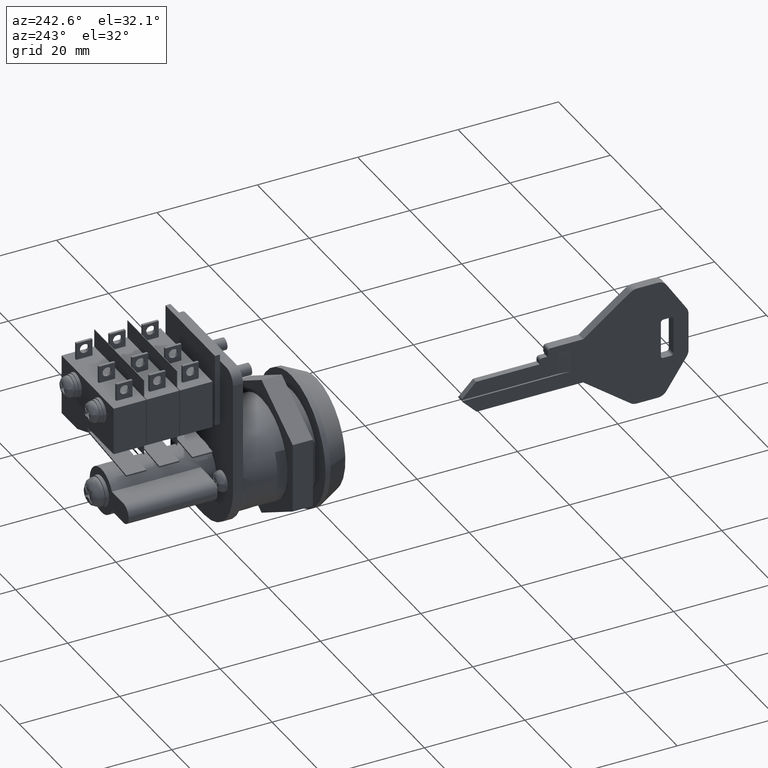
[diagram: clean part render]
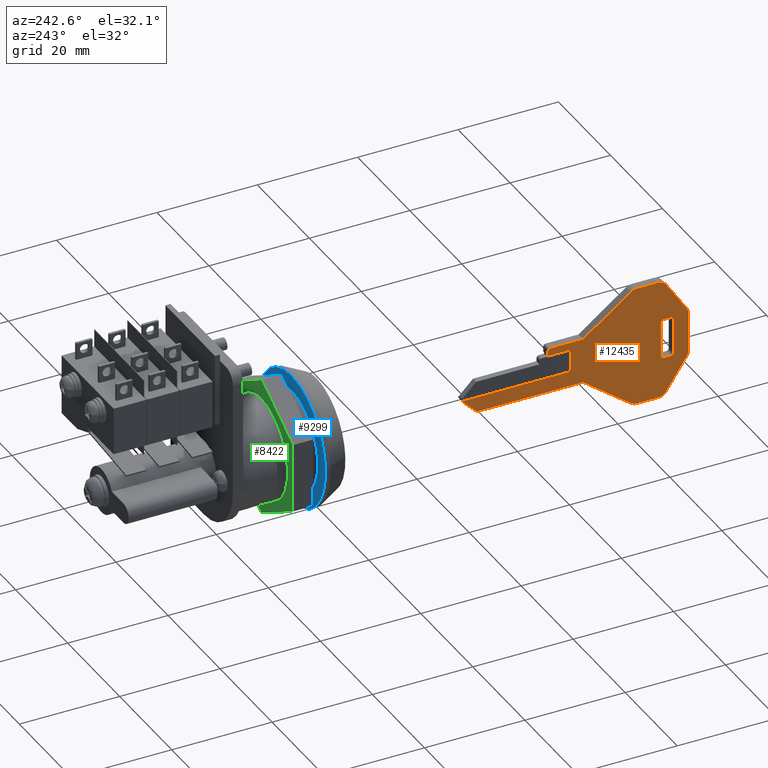
[diagram: same view with three faces highlighted in distinct colors, each labeled with its STEP entity id]
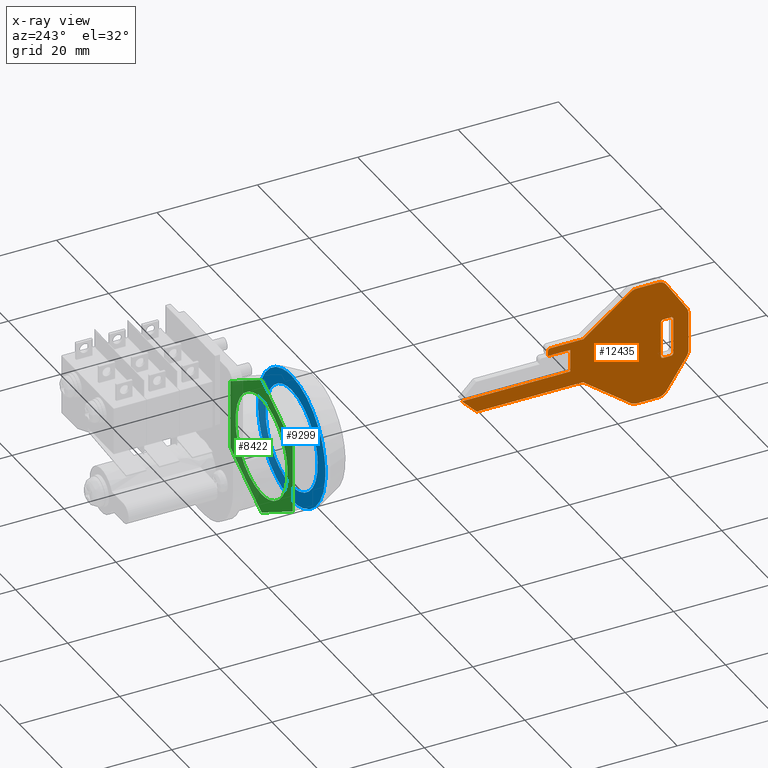
[diagram: x-ray of the same camera — body ghosted, the three highlighted faces saturated]
A machine part, auxiliary view with three faces highlighted in distinct colors.
The next image is the same camera in x-ray (body ghosted, the three faces saturated) — at least one of them is partly hidden behind the body in this view.
Their STEP definitions:

[orange] entity #12435 — the highlighted face is a freeform B-spline surface patch.
#10928=CARTESIAN_POINT('',(-50.107604999999893,0.900000000000012,-1.500000000000115));
#10929=VERTEX_POINT('',#10928);
#10945=CARTESIAN_POINT('',(-50.107604999999893,0.900000000000012,3.0));
#10946=VERTEX_POINT('',#10945);
#10947=CARTESIAN_POINT('',(-50.107604999999893,0.900000000000012,-1.500000000000115));
#10948=CARTESIAN_POINT('',(-50.107604999999893,0.900000000000012,3.0));
#10949=QUASI_UNIFORM_CURVE('',1,(#10947,#10948),.UNSPECIFIED.,.F.,.U.);
#10950=EDGE_CURVE('',#10929,#10946,#10949,.T.);
#10982=CARTESIAN_POINT('',(-70.107602999999898,0.900000000000000,4.0));
#10983=VERTEX_POINT('',#10982);
#10989=CARTESIAN_POINT('',(-68.607603026179802,0.900000000000012,4.0));
#10990=VERTEX_POINT('',#10989);
#10991=CARTESIAN_POINT('',(-70.107602999999898,0.900000000000000,4.0));
#10992=CARTESIAN_POINT('',(-68.607603026179802,0.900000000000012,4.0));
#10993=QUASI_UNIFORM_CURVE('',1,(#10991,#10992),.UNSPECIFIED.,.F.,.U.);
#10994=EDGE_CURVE('',#10983,#10990,#10993,.T.);
#11026=CARTESIAN_POINT('',(-68.107602999999898,0.900000000000012,3.500000000000000));
#11027=VERTEX_POINT('',#11026);
#11028=CARTESIAN_POINT('',(-68.607603026179802,0.900000000000012,3.999999999999999));
#11029=CARTESIAN_POINT('',(-68.400496237325342,0.900000000000012,4.000000010844071));
#11030=CARTESIAN_POINT('',(-68.254049618662620,0.900000000000012,3.853553399849268));
#11031=CARTESIAN_POINT('',(-68.107602999999898,0.900000000000012,3.707106788854465));
#11032=CARTESIAN_POINT('',(-68.107602999999898,0.900000000000012,3.500000000000000));
#11040=(BOUNDED_CURVE()B_SPLINE_CURVE(2,(#11028,#11029,#11030,#11031,#11032),.UNSPECIFIED.,.F.,.U.)B_SPLINE_CURVE_WITH_KNOTS((3,2,3),(0.0,0.500000000000000,1.0),.UNSPECIFIED.)CURVE()GEOMETRIC_REPRESENTATION_ITEM()RATIONAL_B_SPLINE_CURVE((1.0,0.923879527501979,1.0,0.923879527501979,1.0))REPRESENTATION_ITEM(''));
#11041=EDGE_CURVE('',#10990,#11027,#11040,.T.);
#11074=CARTESIAN_POINT('',(-68.107602999999898,0.900000000000012,-3.500000000000000));
#11075=VERTEX_POINT('',#11074);
#11076=CARTESIAN_POINT('',(-68.107602999999898,0.900000000000012,3.500000000000000));
#11077=CARTESIAN_POINT('',(-68.107602999999898,0.900000000000012,-3.500000000000000));
#11078=QUASI_UNIFORM_CURVE('',1,(#11076,#11077),.UNSPECIFIED.,.F.,.U.);
#11079=EDGE_CURVE('',#11027,#11075,#11078,.T.);
#11111=CARTESIAN_POINT('',(-68.607602999999898,0.900000000000012,-4.000000000000116));
#11112=VERTEX_POINT('',#11111);
#11113=CARTESIAN_POINT('',(-68.107602999999898,0.900000000000012,-3.500000000000000));
#11114=CARTESIAN_POINT('',(-68.107602999999898,0.900000000000012,-4.000000000000000));
#11115=CARTESIAN_POINT('',(-68.607602999999898,0.900000000000012,-4.0));
#11123=(BOUNDED_CURVE()B_SPLINE_CURVE(2,(#11113,#11114,#11115),.UNSPECIFIED.,.F.,.U.)CURVE()GEOMETRIC_REPRESENTATION_ITEM()QUASI_UNIFORM_CURVE()RATIONAL_B_SPLINE_CURVE((1.0,0.707106781186548,1.0))REPRESENTATION_ITEM(''));
#11124=EDGE_CURVE('',#11075,#11112,#11123,.T.);
#11155=CARTESIAN_POINT('',(-70.107602991273296,0.900000000000012,-4.0));
#11156=VERTEX_POINT('',#11155);
#11157=CARTESIAN_POINT('',(-68.607602999999898,0.900000000000012,-4.000000000000116));
#11158=CARTESIAN_POINT('',(-70.107602991273296,0.900000000000012,-4.0));
#11159=QUASI_UNIFORM_CURVE('',1,(#11157,#11158),.UNSPECIFIED.,.F.,.U.);
#11160=EDGE_CURVE('',#11112,#11156,#11159,.T.);
#11192=CARTESIAN_POINT('',(-70.607602999999898,0.900000000000012,-3.500000000000000));
#11193=VERTEX_POINT('',#11192);
#11194=CARTESIAN_POINT('',(-70.107602991273296,0.900000000000012,-4.0));
#11195=CARTESIAN_POINT('',(-70.314709775015800,0.900000000000012,-4.000000003614677));
#11196=CARTESIAN_POINT('',(-70.461156387507842,0.900000000000012,-3.853553393678594));
#11197=CARTESIAN_POINT('',(-70.607602999999898,0.900000000000012,-3.707106783742511));
#11198=CARTESIAN_POINT('',(-70.607602999999898,0.900000000000012,-3.500000000000000));
#11206=(BOUNDED_CURVE()B_SPLINE_CURVE(2,(#11194,#11195,#11196,#11197,#11198),.UNSPECIFIED.,.F.,.U.)B_SPLINE_CURVE_WITH_KNOTS((3,2,3),(0.0,0.500000000000000,1.0),.UNSPECIFIED.)CURVE()GEOMETRIC_REPRESENTATION_ITEM()RATIONAL_B_SPLINE_CURVE((1.0,0.923879530841524,1.0,0.923879530841524,1.0))REPRESENTATION_ITEM(''));
#11207=EDGE_CURVE('',#11156,#11193,#11206,.T.);
#11240=CARTESIAN_POINT('',(-70.607602999999898,0.900000000000012,3.500000000000000));
#11241=VERTEX_POINT('',#11240);
#11242=CARTESIAN_POINT('',(-70.607602999999898,0.900000000000012,-3.500000000000000));
#11243=CARTESIAN_POINT('',(-70.607602999999898,0.900000000000012,3.500000000000000));
#11244=QUASI_UNIFORM_CURVE('',1,(#11242,#11243),.UNSPECIFIED.,.F.,.U.);
#11245=EDGE_CURVE('',#11193,#11241,#11244,.T.);
#11277=CARTESIAN_POINT('',(-70.607602999999898,0.900000000000012,3.500000000000000));
#11278=CARTESIAN_POINT('',(-70.607602999999898,0.900000000000012,4.000000000000000));
#11279=CARTESIAN_POINT('',(-70.107602999999898,0.900000000000012,4.0));
#11287=(BOUNDED_CURVE()B_SPLINE_CURVE(2,(#11277,#11278,#11279),.UNSPECIFIED.,.F.,.U.)CURVE()GEOMETRIC_REPRESENTATION_ITEM()QUASI_UNIFORM_CURVE()RATIONAL_B_SPLINE_CURVE((1.0,0.707106781186548,1.0))REPRESENTATION_ITEM(''));
#11288=EDGE_CURVE('',#11241,#10983,#11287,.T.);
#11398=CARTESIAN_POINT('',(-28.607599704258551,0.900000000000012,-1.500000000000115));
#11399=VERTEX_POINT('',#11398);
#11400=CARTESIAN_POINT('',(-28.607599704258551,0.900000000000012,-1.500000000000115));
#11401=CARTESIAN_POINT('',(-50.107604999999893,0.900000000000012,-1.500000000000115));
#11402=QUASI_UNIFORM_CURVE('',1,(#11400,#11401),.UNSPECIFIED.,.F.,.U.);
#11403=EDGE_CURVE('',#11399,#10929,#11402,.T.);
#11422=CARTESIAN_POINT('',(-45.607604999999900,0.900000000000012,3.0));
#11423=VERTEX_POINT('',#11422);
#11424=CARTESIAN_POINT('',(-50.107604999999893,0.900000000000012,3.0));
#11425=CARTESIAN_POINT('',(-45.607604999999900,0.900000000000012,3.0));
#11426=QUASI_UNIFORM_CURVE('',1,(#11424,#11425),.UNSPECIFIED.,.F.,.U.);
#11427=EDGE_CURVE('',#10946,#11423,#11426,.T.);
#11572=CARTESIAN_POINT('',(-63.274269104719700,0.900000000000012,12.0));
#11573=VERTEX_POINT('',#11572);
#11574=CARTESIAN_POINT('',(-67.537236999999905,0.900000000000012,12.0));
#11575=VERTEX_POINT('',#11574);
#11576=CARTESIAN_POINT('',(-63.274269104719700,0.900000000000012,12.0));
#11577=CARTESIAN_POINT('',(-67.537236999999905,0.900000000000012,12.0));
#11578=QUASI_UNIFORM_CURVE('',1,(#11576,#11577),.UNSPECIFIED.,.F.,.U.);
#11579=EDGE_CURVE('',#11573,#11575,#11578,.T.);
#11617=CARTESIAN_POINT('',(-62.074271999999887,0.900000000000012,11.600006000000000));
#11618=VERTEX_POINT('',#11617);
#11619=CARTESIAN_POINT('',(-62.074271999999887,0.900000000000012,11.600006000000000));
#11620=CARTESIAN_POINT('',(-62.607604813202990,0.900000000000012,12.000001234912732));
#11621=CARTESIAN_POINT('',(-63.274269104719700,0.900000000000012,12.0));
#11629=(BOUNDED_CURVE()B_SPLINE_CURVE(2,(#11619,#11620,#11621),.UNSPECIFIED.,.F.,.U.)CURVE()GEOMETRIC_REPRESENTATION_ITEM()QUASI_UNIFORM_CURVE()RATIONAL_B_SPLINE_CURVE((1.0,0.948683764111594,1.0))REPRESENTATION_ITEM(''));
#11630=EDGE_CURVE('',#11618,#11573,#11629,.T.);
#11661=CARTESIAN_POINT('',(-52.607604999999900,0.900000000000012,4.499999999999885));
#11662=VERTEX_POINT('',#11661);
#11663=CARTESIAN_POINT('',(-52.607604999999900,0.900000000000012,4.499999999999885));
#11664=CARTESIAN_POINT('',(-62.074271999999887,0.900000000000012,11.600006000000000));
#11665=QUASI_UNIFORM_CURVE('',1,(#11663,#11664),.UNSPECIFIED.,.F.,.U.);
#11666=EDGE_CURVE('',#11662,#11618,#11665,.T.);
#11689=CARTESIAN_POINT('',(-46.107605026179897,0.900000000000012,4.500000000000000));
#11690=VERTEX_POINT('',#11689);
#11691=CARTESIAN_POINT('',(-46.107605026179897,0.900000000000012,4.500000000000000));
#11692=CARTESIAN_POINT('',(-52.607604999999900,0.900000000000012,4.499999999999885));
#11693=QUASI_UNIFORM_CURVE('',1,(#11691,#11692),.UNSPECIFIED.,.F.,.U.);
#11694=EDGE_CURVE('',#11690,#11662,#11693,.T.);
#11726=CARTESIAN_POINT('',(-45.607604999999900,0.900000000000012,4.0));
#11727=VERTEX_POINT('',#11726);
#11728=CARTESIAN_POINT('',(-45.607604999999900,0.900000000000012,4.0));
#11729=CARTESIAN_POINT('',(-45.607604999999900,0.900000000000012,4.207106788854493));
#11730=CARTESIAN_POINT('',(-45.754051618662650,0.900000000000012,4.353553399849303));
#11731=CARTESIAN_POINT('',(-45.900498237325408,0.900000000000012,4.500000010844113));
#11732=CARTESIAN_POINT('',(-46.107605026179897,0.900000000000012,4.500000000000000));
#11740=(BOUNDED_CURVE()B_SPLINE_CURVE(2,(#11728,#11729,#11730,#11731,#11732),.UNSPECIFIED.,.F.,.U.)B_SPLINE_CURVE_WITH_KNOTS((3,2,3),(0.0,0.500000000000000,1.0),.UNSPECIFIED.)CURVE()GEOMETRIC_REPRESENTATION_ITEM()RATIONAL_B_SPLINE_CURVE((1.0,0.923879527501960,1.0,0.923879527501960,1.0))REPRESENTATION_ITEM(''));
#11741=EDGE_CURVE('',#11727,#11690,#11740,.T.);
#11776=CARTESIAN_POINT('',(-45.607604999999900,0.900000000000012,3.0));
#11777=CARTESIAN_POINT('',(-45.607604999999900,0.900000000000012,4.0));
#11778=QUASI_UNIFORM_CURVE('',1,(#11776,#11777),.UNSPECIFIED.,.F.,.U.);
#11779=EDGE_CURVE('',#11423,#11727,#11778,.T.);
#11811=CARTESIAN_POINT('',(-28.754050999999901,0.900000000000012,-1.853562000000210));
#11812=VERTEX_POINT('',#11811);
#11813=CARTESIAN_POINT('',(-28.754050999999901,0.900000000000012,-1.853562000000210));
#11814=CARTESIAN_POINT('',(-28.607597651970771,0.900000000000012,-1.707114488704743));
#11815=CARTESIAN_POINT('',(-28.607599704258551,0.900000000000012,-1.500000000000115));
#11823=(BOUNDED_CURVE()B_SPLINE_CURVE(2,(#11813,#11814,#11815),.UNSPECIFIED.,.F.,.U.)CURVE()GEOMETRIC_REPRESENTATION_ITEM()QUASI_UNIFORM_CURVE()RATIONAL_B_SPLINE_CURVE((1.0,0.923872941378838,1.0))REPRESENTATION_ITEM(''));
#11824=EDGE_CURVE('',#11812,#11399,#11823,.T.);
#11863=CARTESIAN_POINT('',(-31.400496999999898,0.900000000000012,-4.500000000000000));
#11864=VERTEX_POINT('',#11863);
#11865=CARTESIAN_POINT('',(-31.400496999999898,0.900000000000012,-4.500000000000000));
#11866=CARTESIAN_POINT('',(-28.754050999999901,0.900000000000012,-1.853562000000210));
#11867=QUASI_UNIFORM_CURVE('',1,(#11865,#11866),.UNSPECIFIED.,.F.,.U.);
#11868=EDGE_CURVE('',#11864,#11812,#11867,.T.);
#11891=CARTESIAN_POINT('',(-52.607600999999903,0.900000000000012,-4.500000000000000));
#11892=VERTEX_POINT('',#11891);
#11893=CARTESIAN_POINT('',(-52.607600999999903,0.900000000000012,-4.500000000000000));
#11894=CARTESIAN_POINT('',(-31.400496999999898,0.900000000000012,-4.500000000000000));
#11895=QUASI_UNIFORM_CURVE('',1,(#11893,#11894),.UNSPECIFIED.,.F.,.U.);
#11896=EDGE_CURVE('',#11892,#11864,#11895,.T.);
#11919=CARTESIAN_POINT('',(-62.070993170872597,0.900000000000012,-11.597537880314020));
#11920=VERTEX_POINT('',#11919);
#11921=CARTESIAN_POINT('',(-62.070993170872597,0.900000000000012,-11.597537880314020));
#11922=CARTESIAN_POINT('',(-52.607600999999903,0.900000000000012,-4.500000000000000));
#11923=QUASI_UNIFORM_CURVE('',1,(#11921,#11922),.UNSPECIFIED.,.F.,.U.);
#11924=EDGE_CURVE('',#11920,#11892,#11923,.T.);
#11956=CARTESIAN_POINT('',(-63.274268999999897,0.900000000000012,-12.0));
#11957=VERTEX_POINT('',#11956);
#11958=CARTESIAN_POINT('',(-63.274268999999897,0.900000000000012,-12.0));
#11959=CARTESIAN_POINT('',(-62.605324922600914,0.900000000000012,-12.000000000000005));
#11960=CARTESIAN_POINT('',(-62.070993170872633,0.900000000000012,-11.597537880313981));
#11968=(BOUNDED_CURVE()B_SPLINE_CURVE(2,(#11958,#11959,#11960),.UNSPECIFIED.,.F.,.U.)CURVE()GEOMETRIC_REPRESENTATION_ITEM()QUASI_UNIFORM_CURVE()RATIONAL_B_SPLINE_CURVE((1.0,0.948358829809949,1.0))REPRESENTATION_ITEM(''));
#11969=EDGE_CURVE('',#11957,#11920,#11968,.T.);
#12000=CARTESIAN_POINT('',(-67.537237104719694,0.900000000000012,-12.0));
#12001=VERTEX_POINT('',#12000);
#12002=CARTESIAN_POINT('',(-67.537237104719694,0.900000000000012,-12.0));
#12003=CARTESIAN_POINT('',(-63.274268999999897,0.900000000000012,-12.0));
#12004=QUASI_UNIFORM_CURVE('',1,(#12002,#12003),.UNSPECIFIED.,.F.,.U.);
#12005=EDGE_CURVE('',#12001,#11957,#12004,.T.);
#12037=CARTESIAN_POINT('',(-69.201337999999907,0.900000000000012,-11.109406000000099));
#12038=VERTEX_POINT('',#12037);
#12039=CARTESIAN_POINT('',(-69.201337999999907,0.900000000000012,-11.109406000000099));
#12040=CARTESIAN_POINT('',(-68.607603136463396,0.900000000000012,-12.000000901581313));
#12041=CARTESIAN_POINT('',(-67.537237104719694,0.900000000000012,-12.0));
#12049=(BOUNDED_CURVE()B_SPLINE_CURVE(2,(#12039,#12040,#12041),.UNSPECIFIED.,.F.,.U.)CURVE()GEOMETRIC_REPRESENTATION_ITEM()QUASI_UNIFORM_CURVE()RATIONAL_B_SPLINE_CURVE((1.0,0.881675134599065,1.0))REPRESENTATION_ITEM(''));
#12050=EDGE_CURVE('',#12038,#12001,#12049,.T.);
#12081=CARTESIAN_POINT('',(-73.271703676310693,0.900000000000012,-5.003855260997839));
#12082=VERTEX_POINT('',#12081);
#12083=CARTESIAN_POINT('',(-73.271703676310693,0.900000000000012,-5.003855260997839));
#12084=CARTESIAN_POINT('',(-69.201337999999907,0.900000000000012,-11.109406000000099));
#12085=QUASI_UNIFORM_CURVE('',1,(#12083,#12084),.UNSPECIFIED.,.F.,.U.);
#12086=EDGE_CURVE('',#12082,#12038,#12085,.T.);
#12118=CARTESIAN_POINT('',(-73.607602999999898,0.900000000000012,-3.894455000000110));
#12119=VERTEX_POINT('',#12118);
#12120=CARTESIAN_POINT('',(-73.607602999999898,0.900000000000012,-3.894455000000110));
#12121=CARTESIAN_POINT('',(-73.607602999999898,0.900000000000012,-4.500006189229297));
#12122=CARTESIAN_POINT('',(-73.271703676310722,0.900000000000012,-5.003855260997854));
#12130=(BOUNDED_CURVE()B_SPLINE_CURVE(2,(#12120,#12121,#12122),.UNSPECIFIED.,.F.,.U.)CURVE()GEOMETRIC_REPRESENTATION_ITEM()QUASI_UNIFORM_CURVE()RATIONAL_B_SPLINE_CURVE((1.0,0.957092037934548,1.0))REPRESENTATION_ITEM(''));
#12131=EDGE_CURVE('',#12119,#12082,#12130,.T.);
#12162=CARTESIAN_POINT('',(-73.607602999999898,0.900000000000012,3.894454825467070));
#12163=VERTEX_POINT('',#12162);
#12164=CARTESIAN_POINT('',(-73.607602999999898,0.900000000000012,3.894454825467070));
#12165=CARTESIAN_POINT('',(-73.607602999999898,0.900000000000012,-3.894455000000110));
#12166=QUASI_UNIFORM_CURVE('',1,(#12164,#12165),.UNSPECIFIED.,.F.,.U.);
#12167=EDGE_CURVE('',#12163,#12119,#12166,.T.);
#12199=CARTESIAN_POINT('',(-73.270456448436306,0.900000000000012,5.005723828422310));
#12200=VERTEX_POINT('',#12199);
#12201=CARTESIAN_POINT('',(-73.270456448436320,0.900000000000012,5.005723828422319));
#12202=CARTESIAN_POINT('',(-73.607603052951234,0.900000000000012,4.501232584172988));
#12203=CARTESIAN_POINT('',(-73.607602999999884,0.900000000000012,3.894454825467069));
#12211=(BOUNDED_CURVE()B_SPLINE_CURVE(2,(#12201,#12202,#12203),.UNSPECIFIED.,.F.,.U.)CURVE()GEOMETRIC_REPRESENTATION_ITEM()QUASI_UNIFORM_CURVE()RATIONAL_B_SPLINE_CURVE((1.0,0.956929118516611,1.0))REPRESENTATION_ITEM(''));
#12212=EDGE_CURVE('',#12200,#12163,#12211,.T.);
#12243=CARTESIAN_POINT('',(-69.201337999999907,0.900000000000012,11.109404999999899));
#12244=VERTEX_POINT('',#12243);
#12245=CARTESIAN_POINT('',(-69.201337999999907,0.900000000000012,11.109404999999899));
#12246=CARTESIAN_POINT('',(-73.270456448436306,0.900000000000012,5.005723828422310));
#12247=QUASI_UNIFORM_CURVE('',1,(#12245,#12246),.UNSPECIFIED.,.F.,.U.);
#12248=EDGE_CURVE('',#12244,#12200,#12247,.T.);
#12280=CARTESIAN_POINT('',(-67.537236999999905,0.900000000000012,12.0));
#12281=CARTESIAN_POINT('',(-68.607603403512840,0.900000000000012,12.000000803777835));
#12282=CARTESIAN_POINT('',(-69.201337999999907,0.900000000000012,11.109404999999899));
#12290=(BOUNDED_CURVE()B_SPLINE_CURVE(2,(#12280,#12281,#12282),.UNSPECIFIED.,.F.,.U.)CURVE()GEOMETRIC_REPRESENTATION_ITEM()QUASI_UNIFORM_CURVE()RATIONAL_B_SPLINE_CURVE((1.0,0.881675024093946,1.0))REPRESENTATION_ITEM(''));
#12291=EDGE_CURVE('',#11575,#12244,#12290,.T.);
#12396=CARTESIAN_POINT('',(-75.855355189542649,0.900000000000000,13.198799953483340));
#12397=CARTESIAN_POINT('',(-26.359848319378600,0.900000000000000,13.198799953483340));
#12398=CARTESIAN_POINT('',(-75.855355189542649,0.900000000000000,-13.198800597213509));
#12399=CARTESIAN_POINT('',(-26.359848319378589,0.900000000000000,-13.198800597213509));
#12400=B_SPLINE_SURFACE_WITH_KNOTS('',1,1,((#12396,#12398),(#12397,#12399)),.UNSPECIFIED.,.F.,.F.,.U.,(2,2),(2,2),(0.0,49.495506870164057),(0.0,26.397600550696851),.UNSPECIFIED.);
#12401=ORIENTED_EDGE('',*,*,#11779,.F.);
#12402=ORIENTED_EDGE('',*,*,#11427,.F.);
#12403=ORIENTED_EDGE('',*,*,#10950,.F.);
#12404=ORIENTED_EDGE('',*,*,#11403,.F.);
#12405=ORIENTED_EDGE('',*,*,#11824,.F.);
#12406=ORIENTED_EDGE('',*,*,#11868,.F.);
#12407=ORIENTED_EDGE('',*,*,#11896,.F.);
#12408=ORIENTED_EDGE('',*,*,#11924,.F.);
#12409=ORIENTED_EDGE('',*,*,#11969,.F.);
#12410=ORIENTED_EDGE('',*,*,#12005,.F.);
#12411=ORIENTED_EDGE('',*,*,#12050,.F.);
#12412=ORIENTED_EDGE('',*,*,#12086,.F.);
#12413=ORIENTED_EDGE('',*,*,#12131,.F.);
#12414=ORIENTED_EDGE('',*,*,#12167,.F.);
#12415=ORIENTED_EDGE('',*,*,#12212,.F.);
#12416=ORIENTED_EDGE('',*,*,#12248,.F.);
#12417=ORIENTED_EDGE('',*,*,#12291,.F.);
#12418=ORIENTED_EDGE('',*,*,#11579,.F.);
#12419=ORIENTED_EDGE('',*,*,#11630,.F.);
#12420=ORIENTED_EDGE('',*,*,#11666,.F.);
#12421=ORIENTED_EDGE('',*,*,#11694,.F.);
#12422=ORIENTED_EDGE('',*,*,#11741,.F.);
#12423=EDGE_LOOP('',(#12401,#12402,#12403,#12404,#12405,#12406,#12407,#12408,#12409,#12410,#12411,#12412,#12413,#12414,#12415,#12416,#12417,#12418,#12419,#12420,#12421,#12422));
#12424=FACE_OUTER_BOUND('',#12423,.T.);
#12425=ORIENTED_EDGE('',*,*,#11288,.F.);
#12426=ORIENTED_EDGE('',*,*,#11245,.F.);
#12427=ORIENTED_EDGE('',*,*,#11207,.F.);
#12428=ORIENTED_EDGE('',*,*,#11160,.F.);
#12429=ORIENTED_EDGE('',*,*,#11124,.F.);
#12430=ORIENTED_EDGE('',*,*,#11079,.F.);
#12431=ORIENTED_EDGE('',*,*,#11041,.F.);
#12432=ORIENTED_EDGE('',*,*,#10994,.F.);
#12433=EDGE_LOOP('',(#12425,#12426,#12427,#12428,#12429,#12430,#12431,#12432));
#12434=FACE_BOUND('',#12433,.T.);
#12435=ADVANCED_FACE('',(#12424,#12434),#12400,.T.);

[blue] entity #9299 — the highlighted face is a freeform B-spline surface patch.
#8620=CARTESIAN_POINT('',(5.000000000000121,9.981349081666695,0.610467451704657));
#8621=VERTEX_POINT('',#8620);
#8627=CARTESIAN_POINT('',(5.000000000000120,1.278977E-013,9.999999999999998));
#8628=VERTEX_POINT('',#8627);
#8629=CARTESIAN_POINT('',(5.000000000000120,1.278977E-013,9.999999999999998));
#8630=CARTESIAN_POINT('',(5.000000000000120,9.407077611908905,9.999999999999998));
#8631=CARTESIAN_POINT('',(5.000000000000120,9.981349081666695,0.610467451704657));
#8639=(BOUNDED_CURVE()B_SPLINE_CURVE(2,(#8629,#8630,#8631),.UNSPECIFIED.,.F.,.U.)B_SPLINE_CURVE_WITH_KNOTS((3,3),(0.500000000000000,0.739333272432423),.UNSPECIFIED.)CURVE()GEOMETRIC_REPRESENTATION_ITEM()RATIONAL_B_SPLINE_CURVE((1.0,0.719603629872443,0.976072706471295))REPRESENTATION_ITEM(''));
#8640=EDGE_CURVE('',#8628,#8621,#8639,.T.);
#8642=CARTESIAN_POINT('',(5.000000000000120,-9.930095263624208,-1.180342346671298));
#8643=VERTEX_POINT('',#8642);
#8644=CARTESIAN_POINT('',(5.000000000000120,-9.930095263624208,-1.180342346671298));
#8645=CARTESIAN_POINT('',(5.000000000000120,-9.999999999999872,-0.592241196623912));
#8646=CARTESIAN_POINT('',(5.000000000000120,-9.999999999999872,-8.881784E-016));
#8647=CARTESIAN_POINT('',(5.000000000000121,-9.999999999999872,9.999999999999998));
#8648=CARTESIAN_POINT('',(5.000000000000120,1.278977E-013,9.999999999999998));
#8656=(BOUNDED_CURVE()B_SPLINE_CURVE(2,(#8644,#8645,#8646,#8647,#8648),.UNSPECIFIED.,.F.,.U.)B_SPLINE_CURVE_WITH_KNOTS((3,2,3),(0.229562473512114,0.250000000000000,0.500000000000000),.UNSPECIFIED.)CURVE()GEOMETRIC_REPRESENTATION_ITEM()RATIONAL_B_SPLINE_CURVE((0.956026754180966,0.976055948329511,1.0,0.707106781186548,1.0))REPRESENTATION_ITEM(''));
#8657=EDGE_CURVE('',#8643,#8628,#8656,.T.);
#8701=CARTESIAN_POINT('',(5.000000000000120,1.278977E-013,-10.0));
#8702=VERTEX_POINT('',#8701);
#8703=CARTESIAN_POINT('',(5.000000000000120,1.278977E-013,-10.0));
#8704=CARTESIAN_POINT('',(5.000000000000121,-8.881745259326708,-10.000000000000002));
#8705=CARTESIAN_POINT('',(5.000000000000120,-9.930095263624208,-1.180342346671298));
#8713=(BOUNDED_CURVE()B_SPLINE_CURVE(2,(#8703,#8704,#8705),.UNSPECIFIED.,.F.,.U.)B_SPLINE_CURVE_WITH_KNOTS((3,3),(0.0,0.229562473512114),.UNSPECIFIED.)CURVE()GEOMETRIC_REPRESENTATION_ITEM()RATIONAL_B_SPLINE_CURVE((1.0,0.731050832857036,0.956026754180966))REPRESENTATION_ITEM(''));
#8714=EDGE_CURVE('',#8702,#8643,#8713,.T.);
#8716=CARTESIAN_POINT('',(5.000000000000120,9.981349081666695,0.610467451704657));
#8717=CARTESIAN_POINT('',(5.000000000000120,10.000000000000126,0.305518636009054));
#8718=CARTESIAN_POINT('',(5.000000000000120,10.000000000000130,-8.881784E-016));
#8719=CARTESIAN_POINT('',(5.000000000000121,10.000000000000128,-10.000000000000002));
#8720=CARTESIAN_POINT('',(5.000000000000120,1.278977E-013,-10.0));
#8728=(BOUNDED_CURVE()B_SPLINE_CURVE(2,(#8716,#8717,#8718,#8719,#8720),.UNSPECIFIED.,.F.,.U.)B_SPLINE_CURVE_WITH_KNOTS((3,2,3),(0.739333272432423,0.750000000000000,1.0),.UNSPECIFIED.)CURVE()GEOMETRIC_REPRESENTATION_ITEM()RATIONAL_B_SPLINE_CURVE((0.976072706471295,0.987503151314105,1.0,0.707106781186548,1.0))REPRESENTATION_ITEM(''));
#8729=EDGE_CURVE('',#8621,#8702,#8728,.T.);
#8971=CARTESIAN_POINT('',(5.000000000000130,12.915099486241660,-1.483308889099051));
#8972=VERTEX_POINT('',#8971);
#8978=CARTESIAN_POINT('',(5.000000000000131,0.0,-13.0));
#8979=VERTEX_POINT('',#8978);
#8980=CARTESIAN_POINT('',(5.000000000000130,12.915099486241658,-1.483308889099051));
#8981=CARTESIAN_POINT('',(5.000000000000132,11.592398627166908,-13.000000000000002));
#8982=CARTESIAN_POINT('',(5.000000000000131,0.0,-13.0));
#8990=(BOUNDED_CURVE()B_SPLINE_CURVE(2,(#8980,#8981,#8982),.UNSPECIFIED.,.F.,.U.)B_SPLINE_CURVE_WITH_KNOTS((3,3),(0.269767762362287,0.500000000000000),.UNSPECIFIED.)CURVE()GEOMETRIC_REPRESENTATION_ITEM()RATIONAL_B_SPLINE_CURVE((0.957343723667043,0.730266155374666,1.0))REPRESENTATION_ITEM(''));
#8991=EDGE_CURVE('',#8972,#8979,#8990,.T.);
#8993=CARTESIAN_POINT('',(5.000000000000130,-12.975752379450640,-0.793631014502984));
#8994=VERTEX_POINT('',#8993);
#8995=CARTESIAN_POINT('',(5.000000000000131,0.0,-13.0));
#8996=CARTESIAN_POINT('',(5.000000000000131,-12.229178868735710,-13.000000000000002));
#8997=CARTESIAN_POINT('',(5.000000000000130,-12.975752379450642,-0.793631014502984));
#9005=(BOUNDED_CURVE()B_SPLINE_CURVE(2,(#8995,#8996,#8997),.UNSPECIFIED.,.F.,.U.)B_SPLINE_CURVE_WITH_KNOTS((3,3),(0.500000000000000,0.739332962227345),.UNSPECIFIED.)CURVE()GEOMETRIC_REPRESENTATION_ITEM()RATIONAL_B_SPLINE_CURVE((1.0,0.719603993300297,0.976072041641862))REPRESENTATION_ITEM(''));
#9006=EDGE_CURVE('',#8979,#8994,#9005,.T.);
#9101=CARTESIAN_POINT('',(5.000000000000131,0.0,13.0));
#9102=VERTEX_POINT('',#9101);
#9103=CARTESIAN_POINT('',(5.000000000000130,-12.975752379450634,-0.793631014502984));
#9104=CARTESIAN_POINT('',(5.000000000000131,-12.999999999999996,-0.397185923433043));
#9105=CARTESIAN_POINT('',(5.000000000000131,-13.0,0.0));
#9106=CARTESIAN_POINT('',(5.000000000000132,-13.0,13.0));
#9107=CARTESIAN_POINT('',(5.000000000000131,0.0,13.0));
#9115=(BOUNDED_CURVE()B_SPLINE_CURVE(2,(#9103,#9104,#9105,#9106,#9107),.UNSPECIFIED.,.F.,.U.)B_SPLINE_CURVE_WITH_KNOTS((3,2,3),(0.739332962227345,0.750000000000000,1.0),.UNSPECIFIED.)CURVE()GEOMETRIC_REPRESENTATION_ITEM()RATIONAL_B_SPLINE_CURVE((0.976072041641861,0.987502787886250,1.0,0.707106781186547,1.0))REPRESENTATION_ITEM(''));
#9116=EDGE_CURVE('',#8994,#9102,#9115,.T.);
#9118=CARTESIAN_POINT('',(5.000000000000131,0.0,13.0));
#9119=CARTESIAN_POINT('',(5.000000000000132,13.0,13.0));
#9120=CARTESIAN_POINT('',(5.000000000000131,13.0,0.0));
#9121=CARTESIAN_POINT('',(5.000000000000131,13.000000000000004,-0.744084305246082));
#9122=CARTESIAN_POINT('',(5.000000000000130,12.915099486241658,-1.483308889099051));
#9130=(BOUNDED_CURVE()B_SPLINE_CURVE(2,(#9118,#9119,#9120,#9121,#9122),.UNSPECIFIED.,.F.,.U.)B_SPLINE_CURVE_WITH_KNOTS((3,2,3),(0.0,0.250000000000000,0.269767762362287),.UNSPECIFIED.)CURVE()GEOMETRIC_REPRESENTATION_ITEM()RATIONAL_B_SPLINE_CURVE((1.0,0.707106781186547,1.0,0.976840625811881,0.957343723667043))REPRESENTATION_ITEM(''));
#9131=EDGE_CURVE('',#9102,#8972,#9130,.T.);
#9282=CARTESIAN_POINT('',(5.000000000000131,-14.298393318327030,14.298699949606950));
#9283=CARTESIAN_POINT('',(5.000000000000131,-14.298393318327030,-14.298700646981301));
#9284=CARTESIAN_POINT('',(5.000000000000131,14.298658785493931,14.298699949606950));
#9285=CARTESIAN_POINT('',(5.000000000000131,14.298658785493931,-14.298700646981301));
#9286=B_SPLINE_SURFACE_WITH_KNOTS('',1,1,((#9282,#9284),(#9283,#9285)),.UNSPECIFIED.,.F.,.F.,.U.,(2,2),(2,2),(0.0,28.597400596588251),(0.0,28.597052103820971),.UNSPECIFIED.);
#9287=ORIENTED_EDGE('',*,*,#9116,.F.);
#9288=ORIENTED_EDGE('',*,*,#9006,.F.);
#9289=ORIENTED_EDGE('',*,*,#8991,.F.);
#9290=ORIENTED_EDGE('',*,*,#9131,.F.);
#9291=EDGE_LOOP('',(#9287,#9288,#9289,#9290));
#9292=FACE_OUTER_BOUND('',#9291,.T.);
#9293=ORIENTED_EDGE('',*,*,#8640,.T.);
#9294=ORIENTED_EDGE('',*,*,#8729,.T.);
#9295=ORIENTED_EDGE('',*,*,#8714,.T.);
#9296=ORIENTED_EDGE('',*,*,#8657,.T.);
#9297=EDGE_LOOP('',(#9293,#9294,#9295,#9296));
#9298=FACE_BOUND('',#9297,.T.);
#9299=ADVANCED_FACE('',(#9292,#9298),#9286,.T.);

[green] entity #8422 — the highlighted face is a freeform B-spline surface patch.
#8181=CARTESIAN_POINT('',(11.000000000000121,9.981349081666695,0.610467451704657));
#8182=VERTEX_POINT('',#8181);
#8188=CARTESIAN_POINT('',(11.000000000000121,1.278977E-013,9.999999999999998));
#8189=VERTEX_POINT('',#8188);
#8190=CARTESIAN_POINT('',(11.000000000000121,1.278977E-013,9.999999999999998));
#8191=CARTESIAN_POINT('',(11.000000000000119,9.407077611908905,9.999999999999998));
#8192=CARTESIAN_POINT('',(11.000000000000119,9.981349081666695,0.610467451704657));
#8200=(BOUNDED_CURVE()B_SPLINE_CURVE(2,(#8190,#8191,#8192),.UNSPECIFIED.,.F.,.U.)B_SPLINE_CURVE_WITH_KNOTS((3,3),(0.500000000000000,0.739333272432423),.UNSPECIFIED.)CURVE()GEOMETRIC_REPRESENTATION_ITEM()RATIONAL_B_SPLINE_CURVE((1.0,0.719603629872443,0.976072706471295))REPRESENTATION_ITEM(''));
#8201=EDGE_CURVE('',#8189,#8182,#8200,.T.);
#8203=CARTESIAN_POINT('',(11.000000000000121,-9.930095263624208,-1.180342346671298));
#8204=VERTEX_POINT('',#8203);
#8205=CARTESIAN_POINT('',(11.000000000000115,-9.930095263624208,-1.180342346671298));
#8206=CARTESIAN_POINT('',(11.000000000000117,-9.999999999999872,-0.592241196623912));
#8207=CARTESIAN_POINT('',(11.000000000000121,-9.999999999999872,-8.881784E-016));
#8208=CARTESIAN_POINT('',(11.000000000000119,-9.999999999999872,9.999999999999998));
#8209=CARTESIAN_POINT('',(11.000000000000121,1.278977E-013,9.999999999999998));
#8217=(BOUNDED_CURVE()B_SPLINE_CURVE(2,(#8205,#8206,#8207,#8208,#8209),.UNSPECIFIED.,.F.,.U.)B_SPLINE_CURVE_WITH_KNOTS((3,2,3),(0.229562473512114,0.250000000000000,0.500000000000000),.UNSPECIFIED.)CURVE()GEOMETRIC_REPRESENTATION_ITEM()RATIONAL_B_SPLINE_CURVE((0.956026754180966,0.976055948329511,1.0,0.707106781186548,1.0))REPRESENTATION_ITEM(''));
#8218=EDGE_CURVE('',#8204,#8189,#8217,.T.);
#8262=CARTESIAN_POINT('',(11.000000000000121,1.278977E-013,-10.0));
#8263=VERTEX_POINT('',#8262);
#8264=CARTESIAN_POINT('',(11.000000000000121,1.278977E-013,-10.0));
#8265=CARTESIAN_POINT('',(11.000000000000121,-8.881745259326708,-10.000000000000002));
#8266=CARTESIAN_POINT('',(11.000000000000117,-9.930095263624208,-1.180342346671298));
#8274=(BOUNDED_CURVE()B_SPLINE_CURVE(2,(#8264,#8265,#8266),.UNSPECIFIED.,.F.,.U.)B_SPLINE_CURVE_WITH_KNOTS((3,3),(0.0,0.229562473512114),.UNSPECIFIED.)CURVE()GEOMETRIC_REPRESENTATION_ITEM()RATIONAL_B_SPLINE_CURVE((1.0,0.731050832857036,0.956026754180966))REPRESENTATION_ITEM(''));
#8275=EDGE_CURVE('',#8263,#8204,#8274,.T.);
#8277=CARTESIAN_POINT('',(11.000000000000119,9.981349081666695,0.610467451704657));
#8278=CARTESIAN_POINT('',(11.000000000000119,10.000000000000126,0.305518636009054));
#8279=CARTESIAN_POINT('',(11.000000000000121,10.000000000000130,-8.881784E-016));
#8280=CARTESIAN_POINT('',(11.000000000000119,10.000000000000128,-10.000000000000002));
#8281=CARTESIAN_POINT('',(11.000000000000121,1.278977E-013,-10.0));
#8289=(BOUNDED_CURVE()B_SPLINE_CURVE(2,(#8277,#8278,#8279,#8280,#8281),.UNSPECIFIED.,.F.,.U.)B_SPLINE_CURVE_WITH_KNOTS((3,2,3),(0.739333272432423,0.750000000000000,1.0),.UNSPECIFIED.)CURVE()GEOMETRIC_REPRESENTATION_ITEM()RATIONAL_B_SPLINE_CURVE((0.976072706471295,0.987503151314105,1.0,0.707106781186548,1.0))REPRESENTATION_ITEM(''));
#8290=EDGE_CURVE('',#8182,#8263,#8289,.T.);
#8367=CARTESIAN_POINT('',(11.000000000000121,13.198798078878159,15.240650058131241));
#8368=CARTESIAN_POINT('',(11.000000000000121,-13.198800508031569,15.240650058131241));
#8369=CARTESIAN_POINT('',(11.000000000000121,13.198798078878159,-15.240639469084609));
#8370=CARTESIAN_POINT('',(11.000000000000121,-13.198800508031569,-15.240639469084609));
#8371=B_SPLINE_SURFACE_WITH_KNOTS('',1,1,((#8367,#8369),(#8368,#8370)),.UNSPECIFIED.,.F.,.F.,.U.,(2,2),(2,2),(0.0,26.397598586909719),(0.0,30.481289527215850),.UNSPECIFIED.);
#8372=CARTESIAN_POINT('',(11.000000000000121,0.000030920549364,13.856397147871061));
#8373=VERTEX_POINT('',#8372);
#8374=CARTESIAN_POINT('',(11.000000000000121,11.999998000000000,6.928158008595650));
#8375=VERTEX_POINT('',#8374);
#8376=CARTESIAN_POINT('',(11.000000000000121,0.000030920549364,13.856397147871061));
#8377=CARTESIAN_POINT('',(11.000000000000121,11.999998000000000,6.928158008595650));
#8378=QUASI_UNIFORM_CURVE('',1,(#8376,#8377),.UNSPECIFIED.,.F.,.U.);
#8379=EDGE_CURVE('',#8373,#8375,#8378,.T.);
#8380=ORIENTED_EDGE('',*,*,#8379,.F.);
#8381=CARTESIAN_POINT('',(11.000000000000121,-12.0,6.928207000000139));
#8382=VERTEX_POINT('',#8381);
#8383=CARTESIAN_POINT('',(11.000000000000121,-12.0,6.928207000000139));
#8384=CARTESIAN_POINT('',(11.000000000000121,0.000030920549364,13.856397147871061));
#8385=QUASI_UNIFORM_CURVE('',1,(#8383,#8384),.UNSPECIFIED.,.F.,.U.);
#8386=EDGE_CURVE('',#8382,#8373,#8385,.T.);
#8387=ORIENTED_EDGE('',*,*,#8386,.F.);
#8388=CARTESIAN_POINT('',(11.000000000000121,-12.0,-6.928232050676881));
#8389=VERTEX_POINT('',#8388);
#8390=CARTESIAN_POINT('',(11.000000000000121,-12.0,-6.928232050676881));
#8391=CARTESIAN_POINT('',(11.000000000000121,-12.0,6.928207000000139));
#8392=QUASI_UNIFORM_CURVE('',1,(#8390,#8391),.UNSPECIFIED.,.F.,.U.);
#8393=EDGE_CURVE('',#8389,#8382,#8392,.T.);
#8394=ORIENTED_EDGE('',*,*,#8393,.F.);
#8395=CARTESIAN_POINT('',(11.000000000000121,-0.000023694636905,-13.856385319966501));
#8396=VERTEX_POINT('',#8395);
#8397=CARTESIAN_POINT('',(11.000000000000121,-0.000023694636905,-13.856385319966501));
#8398=CARTESIAN_POINT('',(11.000000000000121,-12.0,-6.928232050676881));
#8399=QUASI_UNIFORM_CURVE('',1,(#8397,#8398),.UNSPECIFIED.,.F.,.U.);
#8400=EDGE_CURVE('',#8396,#8389,#8399,.T.);
#8401=ORIENTED_EDGE('',*,*,#8400,.F.);
#8402=CARTESIAN_POINT('',(11.000000000000121,11.999998000000000,-6.928205845305520));
#8403=VERTEX_POINT('',#8402);
#8404=CARTESIAN_POINT('',(11.000000000000121,11.999998000000000,-6.928205845305520));
#8405=CARTESIAN_POINT('',(11.000000000000121,-0.000023694636905,-13.856385319966501));
#8406=QUASI_UNIFORM_CURVE('',1,(#8404,#8405),.UNSPECIFIED.,.F.,.U.);
#8407=EDGE_CURVE('',#8403,#8396,#8406,.T.);
#8408=ORIENTED_EDGE('',*,*,#8407,.F.);
#8409=CARTESIAN_POINT('',(11.000000000000121,11.999998000000000,6.928158008595650));
#8410=CARTESIAN_POINT('',(11.000000000000121,11.999998000000000,-6.928205845305520));
#8411=QUASI_UNIFORM_CURVE('',1,(#8409,#8410),.UNSPECIFIED.,.F.,.U.);
#8412=EDGE_CURVE('',#8375,#8403,#8411,.T.);
#8413=ORIENTED_EDGE('',*,*,#8412,.F.);
#8414=EDGE_LOOP('',(#8380,#8387,#8394,#8401,#8408,#8413));
#8415=FACE_OUTER_BOUND('',#8414,.T.);
#8416=ORIENTED_EDGE('',*,*,#8201,.T.);
#8417=ORIENTED_EDGE('',*,*,#8290,.T.);
#8418=ORIENTED_EDGE('',*,*,#8275,.T.);
#8419=ORIENTED_EDGE('',*,*,#8218,.T.);
#8420=EDGE_LOOP('',(#8416,#8417,#8418,#8419));
#8421=FACE_BOUND('',#8420,.T.);
#8422=ADVANCED_FACE('',(#8415,#8421),#8371,.T.);